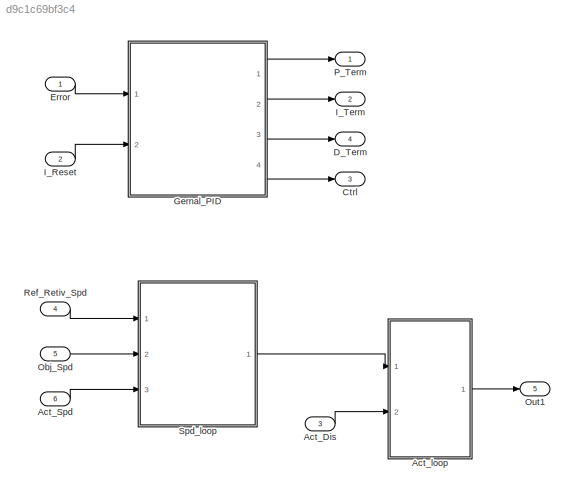
MODEL slx_d9c1c69bf3c4
KIND model
CONFIG AbsTol = auto
CONFIG EnableMultiTasking = off
CONFIG FixedStep = auto
CONFIG MaxStep = auto
CONFIG MinStep = auto
CONFIG RelTol = 1e-3
CONFIG SampleTimeConstraint = Unconstrained
CONFIG SolverName = VariableStepAuto
CONFIG StartTime = 0.0
CONFIG StopTime = 10.0
BLOCK [Inport] Act_Dis
  Port = 3
BLOCK [Inport] Act_Spd
  Port = 6
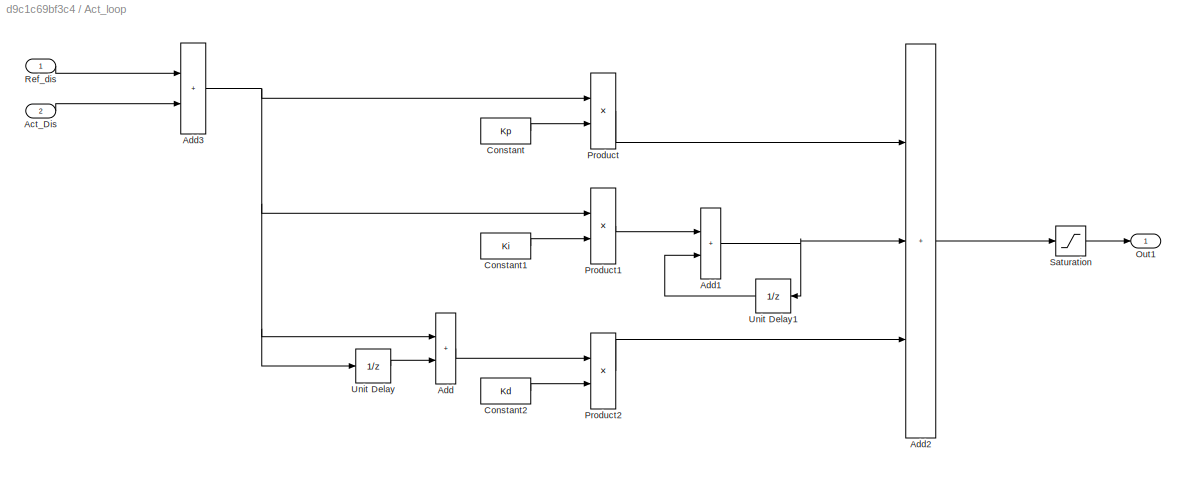
BLOCK [SubSystem] Act_loop
  Ports = [2, 1]
  RequestExecContextInheritance = off
BLOCK [Inport] Act_loop/Act_Dis
  Port = 2
BLOCK [Sum] Act_loop/Add
  IconShape = rectangular
  Ports = [2, 1]
BLOCK [Sum] Act_loop/Add1
  IconShape = rectangular
  Ports = [2, 1]
BLOCK [Sum] Act_loop/Add2
  IconShape = rectangular
  Inputs = +++
  Ports = [3, 1]
BLOCK [Sum] Act_loop/Add3
  IconShape = rectangular
  Ports = [2, 1]
BLOCK [Constant] Act_loop/Constant
  Value = Kp
BLOCK [Constant] Act_loop/Constant1
  Value = Ki
BLOCK [Constant] Act_loop/Constant2
  Value = Kd
BLOCK [Outport] Act_loop/Out1
BLOCK [Product] Act_loop/Product
  Ports = [2, 1]
BLOCK [Product] Act_loop/Product1
  Ports = [2, 1]
BLOCK [Product] Act_loop/Product2
  Ports = [2, 1]
BLOCK [Inport] Act_loop/Ref_dis
BLOCK [Saturate] Act_loop/Saturation
BLOCK [UnitDelay] Act_loop/Unit Delay
  HasFrameUpgradeWarning = on
  SampleTime = -1
BLOCK [UnitDelay] Act_loop/Unit Delay1
  HasFrameUpgradeWarning = on
  SampleTime = -1
BLOCK [Outport] Ctrl
  Port = 3
BLOCK [Outport] D_Term
  Port = 4
BLOCK [Inport] Error
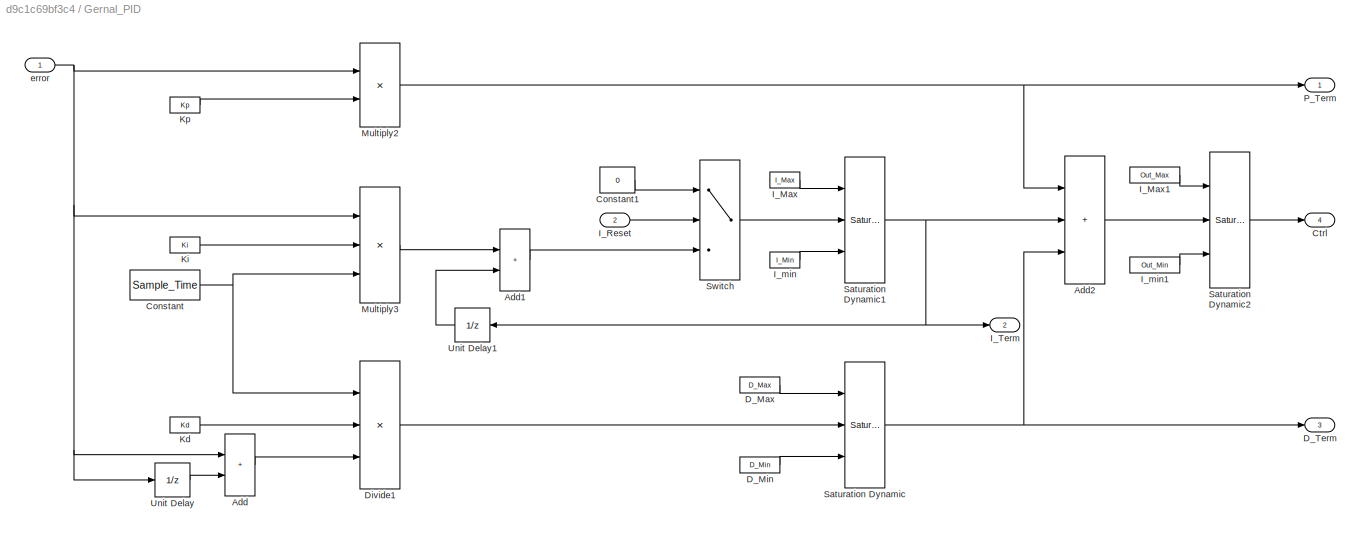
BLOCK [SubSystem] Gernal_PID
  Ports = [2, 4]
  RequestExecContextInheritance = off
BLOCK [Sum] Gernal_PID/Add
  IconShape = rectangular
  Ports = [2, 1]
BLOCK [Sum] Gernal_PID/Add1
  IconShape = rectangular
  Ports = [2, 1]
BLOCK [Sum] Gernal_PID/Add2
  IconShape = rectangular
  Inputs = +++
  Ports = [3, 1]
BLOCK [Constant] Gernal_PID/Constant
  Value = Sample_Time
BLOCK [Constant] Gernal_PID/Constant1
  OutDataTypeStr = single
  Value = 0
  VectorParams1D = off
BLOCK [Outport] Gernal_PID/Ctrl
  Port = 4
BLOCK [Constant] Gernal_PID/D_Max
  Value = D_Max
BLOCK [Constant] Gernal_PID/D_Min
  Value = D_Min
BLOCK [Outport] Gernal_PID/D_Term
  Port = 3
BLOCK [Product] Gernal_PID/Divide1
  Inputs = /**
  Ports = [3, 1]
BLOCK [Constant] Gernal_PID/I_Max
  Value = I_Max
BLOCK [Constant] Gernal_PID/I_Max1
  Value = Out_Max
BLOCK [Inport] Gernal_PID/I_Reset
  Port = 2
BLOCK [Outport] Gernal_PID/I_Term
  Port = 2
BLOCK [Constant] Gernal_PID/I_min
  Value = I_Min
BLOCK [Constant] Gernal_PID/I_min1
  Value = Out_Min
BLOCK [Constant] Gernal_PID/Kd
  Value = Kd
BLOCK [Constant] Gernal_PID/Ki
  Value = Ki
BLOCK [Constant] Gernal_PID/Kp
  Value = Kp
BLOCK [Product] Gernal_PID/Multiply2
  Ports = [2, 1]
BLOCK [Product] Gernal_PID/Multiply3
  Inputs = 3
  Ports = [3, 1]
BLOCK [Outport] Gernal_PID/P_Term
BLOCK [Reference] Gernal_PID/Saturation Dynamic  REF=simulink/Discontinuities/Saturation
Dynamic
  Ports = [3, 1]
  SourceBlock = simulink/Discontinuities/Saturation\nDynamic
  SourceProductBaseCode = SL
  SourceType = Saturation Dynamic
BLOCK [Reference] Gernal_PID/Saturation Dynamic1  REF=simulink/Discontinuities/Saturation
Dynamic
  Ports = [3, 1]
  SourceBlock = simulink/Discontinuities/Saturation\nDynamic
  SourceProductBaseCode = SL
  SourceType = Saturation Dynamic
BLOCK [Reference] Gernal_PID/Saturation Dynamic2  REF=simulink/Discontinuities/Saturation
Dynamic
  Ports = [3, 1]
  SourceBlock = simulink/Discontinuities/Saturation\nDynamic
  SourceProductBaseCode = SL
  SourceType = Saturation Dynamic
BLOCK [Switch] Gernal_PID/Switch
  InputSameDT = off
  OutDataTypeStr = Inherit: Inherit via back propagation
  SaturateOnIntegerOverflow = off
BLOCK [UnitDelay] Gernal_PID/Unit Delay
  HasFrameUpgradeWarning = on
  SampleTime = -1
  StateName = I_Term_Last
BLOCK [UnitDelay] Gernal_PID/Unit Delay1
  HasFrameUpgradeWarning = on
  SampleTime = -1
  StateName = Err_Last
BLOCK [Inport] Gernal_PID/error
BLOCK [Inport] I_Reset
  Port = 2
BLOCK [Outport] I_Term
  Port = 2
BLOCK [Inport] Obj_Spd
  Port = 5
BLOCK [Outport] Out1
  Port = 5
BLOCK [Outport] P_Term
BLOCK [Inport] Ref_Retiv_Spd
  Port = 4
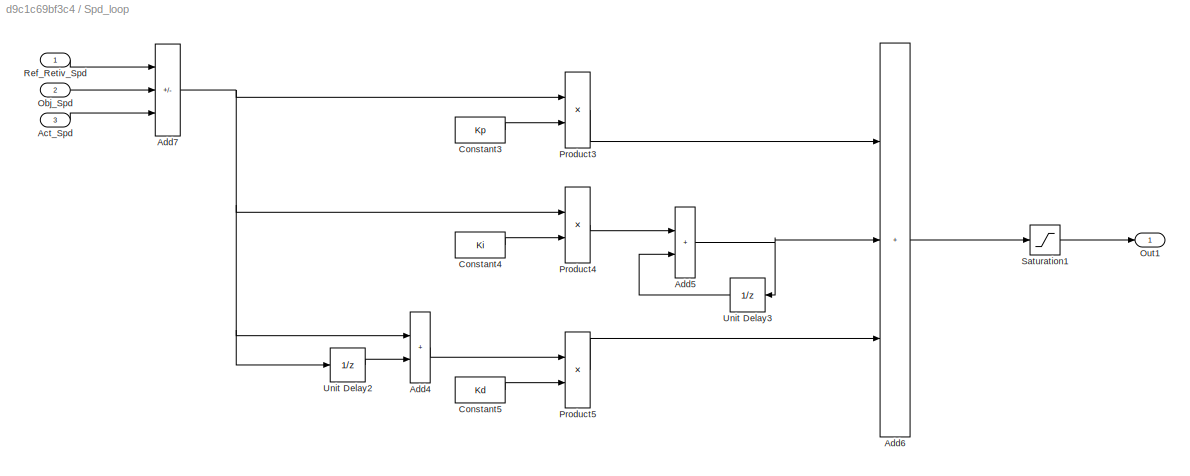
BLOCK [SubSystem] Spd_loop
  Ports = [3, 1]
  RequestExecContextInheritance = off
BLOCK [Inport] Spd_loop/Act_Spd
  Port = 3
BLOCK [Sum] Spd_loop/Add4
  IconShape = rectangular
  Ports = [2, 1]
BLOCK [Sum] Spd_loop/Add5
  IconShape = rectangular
  Ports = [2, 1]
BLOCK [Sum] Spd_loop/Add6
  IconShape = rectangular
  Inputs = +++
  Ports = [3, 1]
BLOCK [Sum] Spd_loop/Add7
  IconShape = rectangular
  Inputs = ++-
  Ports = [3, 1]
BLOCK [Constant] Spd_loop/Constant3
  Value = Kp
BLOCK [Constant] Spd_loop/Constant4
  Value = Ki
BLOCK [Constant] Spd_loop/Constant5
  Value = Kd
BLOCK [Inport] Spd_loop/Obj_Spd
  Port = 2
BLOCK [Outport] Spd_loop/Out1
BLOCK [Product] Spd_loop/Product3
  Ports = [2, 1]
BLOCK [Product] Spd_loop/Product4
  Ports = [2, 1]
BLOCK [Product] Spd_loop/Product5
  Ports = [2, 1]
BLOCK [Inport] Spd_loop/Ref_Retiv_Spd
BLOCK [Saturate] Spd_loop/Saturation1
BLOCK [UnitDelay] Spd_loop/Unit Delay2
  HasFrameUpgradeWarning = on
  SampleTime = -1
BLOCK [UnitDelay] Spd_loop/Unit Delay3
  HasFrameUpgradeWarning = on
  SampleTime = -1
LINE Act_Dis:1 -> Act_loop:2
LINE Act_Spd:1 -> Spd_loop:3
LINE Act_loop/Act_Dis:1 -> Act_loop/Add3:2
NET Act_loop/Add1:1 -> Act_loop/Add2:2, Act_loop/Unit Delay1:1
LINE Act_loop/Add2:1 -> Act_loop/Saturation:1
NET Act_loop/Add3:1 -> Act_loop/Add:1, Act_loop/Product1:1, Act_loop/Product:1, Act_loop/Unit Delay:1
LINE Act_loop/Add:1 -> Act_loop/Product2:1
LINE Act_loop/Constant1:1 -> Act_loop/Product1:2
LINE Act_loop/Constant2:1 -> Act_loop/Product2:2
LINE Act_loop/Constant:1 -> Act_loop/Product:2
LINE Act_loop/Product1:1 -> Act_loop/Add1:1
LINE Act_loop/Product2:1 -> Act_loop/Add2:3
LINE Act_loop/Product:1 -> Act_loop/Add2:1
LINE Act_loop/Ref_dis:1 -> Act_loop/Add3:1
LINE Act_loop/Saturation:1 -> Act_loop/Out1:1
LINE Act_loop/Unit Delay1:1 -> Act_loop/Add1:2
LINE Act_loop/Unit Delay:1 -> Act_loop/Add:2
LINE Act_loop:1 -> Out1:1
LINE Error:1 -> Gernal_PID:1
LINE Gernal_PID/Add1:1 -> Gernal_PID/Switch:3
LINE Gernal_PID/Add2:1 -> Gernal_PID/Saturation Dynamic2:2
LINE Gernal_PID/Add:1 -> Gernal_PID/Divide1:3
LINE Gernal_PID/Constant1:1 -> Gernal_PID/Switch:1
NET Gernal_PID/Constant:1 -> Gernal_PID/Divide1:1, Gernal_PID/Multiply3:3
LINE Gernal_PID/D_Max:1 -> Gernal_PID/Saturation Dynamic:1
LINE Gernal_PID/D_Min:1 -> Gernal_PID/Saturation Dynamic:3
LINE Gernal_PID/Divide1:1 -> Gernal_PID/Saturation Dynamic:2
LINE Gernal_PID/I_Max1:1 -> Gernal_PID/Saturation Dynamic2:1
LINE Gernal_PID/I_Max:1 -> Gernal_PID/Saturation Dynamic1:1
LINE Gernal_PID/I_Reset:1 -> Gernal_PID/Switch:2
LINE Gernal_PID/I_min1:1 -> Gernal_PID/Saturation Dynamic2:3
LINE Gernal_PID/I_min:1 -> Gernal_PID/Saturation Dynamic1:3
LINE Gernal_PID/Kd:1 -> Gernal_PID/Divide1:2
LINE Gernal_PID/Ki:1 -> Gernal_PID/Multiply3:2
LINE Gernal_PID/Kp:1 -> Gernal_PID/Multiply2:2
NET Gernal_PID/Multiply2:1 -> Gernal_PID/Add2:1, Gernal_PID/P_Term:1
LINE Gernal_PID/Multiply3:1 -> Gernal_PID/Add1:1
NET Gernal_PID/Saturation Dynamic1:1 -> Gernal_PID/Add2:2, Gernal_PID/I_Term:1, Gernal_PID/Unit Delay1:1
LINE Gernal_PID/Saturation Dynamic2:1 -> Gernal_PID/Ctrl:1
NET Gernal_PID/Saturation Dynamic:1 -> Gernal_PID/Add2:3, Gernal_PID/D_Term:1
LINE Gernal_PID/Switch:1 -> Gernal_PID/Saturation Dynamic1:2
LINE Gernal_PID/Unit Delay1:1 -> Gernal_PID/Add1:2
LINE Gernal_PID/Unit Delay:1 -> Gernal_PID/Add:2
NET Gernal_PID/error:1 -> Gernal_PID/Add:1, Gernal_PID/Multiply2:1, Gernal_PID/Multiply3:1, Gernal_PID/Unit Delay:1
LINE Gernal_PID:1 -> P_Term:1
LINE Gernal_PID:2 -> I_Term:1
LINE Gernal_PID:3 -> D_Term:1
LINE Gernal_PID:4 -> Ctrl:1
LINE I_Reset:1 -> Gernal_PID:2
LINE Obj_Spd:1 -> Spd_loop:2
LINE Ref_Retiv_Spd:1 -> Spd_loop:1
LINE Spd_loop/Act_Spd:1 -> Spd_loop/Add7:3
LINE Spd_loop/Add4:1 -> Spd_loop/Product5:1
NET Spd_loop/Add5:1 -> Spd_loop/Add6:2, Spd_loop/Unit Delay3:1
LINE Spd_loop/Add6:1 -> Spd_loop/Saturation1:1
NET Spd_loop/Add7:1 -> Spd_loop/Add4:1, Spd_loop/Product3:1, Spd_loop/Product4:1, Spd_loop/Unit Delay2:1
LINE Spd_loop/Constant3:1 -> Spd_loop/Product3:2
LINE Spd_loop/Constant4:1 -> Spd_loop/Product4:2
LINE Spd_loop/Constant5:1 -> Spd_loop/Product5:2
LINE Spd_loop/Obj_Spd:1 -> Spd_loop/Add7:2
LINE Spd_loop/Product3:1 -> Spd_loop/Add6:1
LINE Spd_loop/Product4:1 -> Spd_loop/Add5:1
LINE Spd_loop/Product5:1 -> Spd_loop/Add6:3
LINE Spd_loop/Ref_Retiv_Spd:1 -> Spd_loop/Add7:1
LINE Spd_loop/Saturation1:1 -> Spd_loop/Out1:1
LINE Spd_loop/Unit Delay2:1 -> Spd_loop/Add4:2
LINE Spd_loop/Unit Delay3:1 -> Spd_loop/Add5:2
LINE Spd_loop:1 -> Act_loop:1
note: NET lines group one-source signal fan-out (src -> all destinations, sorted); 1:1 wires keep LINE
